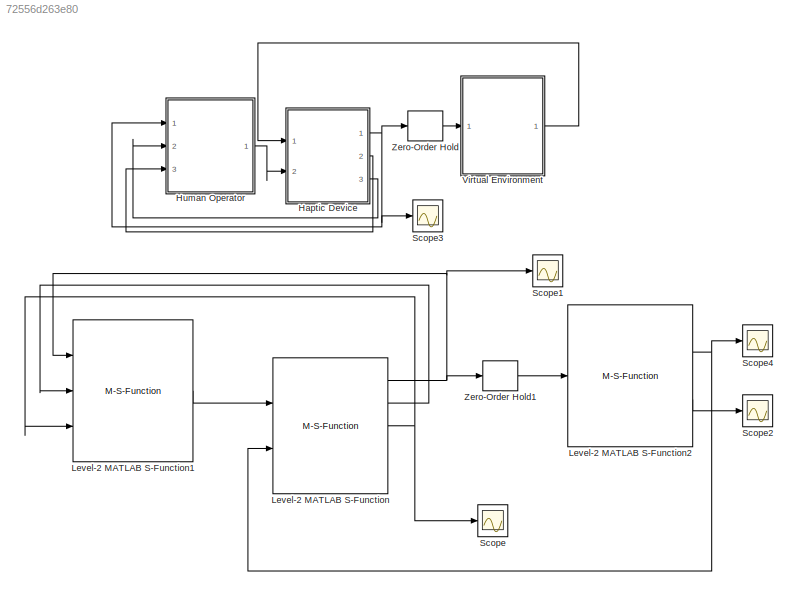
MODEL slx_72556d263e80
KIND model
CONFIG AbsTol = auto
CONFIG FixedStep = auto
CONFIG MaxStep = auto
CONFIG MinStep = auto
CONFIG RelTol = 1e-3
CONFIG SampleTimeConstraint = Unconstrained
CONFIG Solver = VariableStepAuto
CONFIG SolverMode = Auto
CONFIG SolverName = VariableStepAuto
CONFIG StartTime = 0.0
CONFIG StopTime = 5
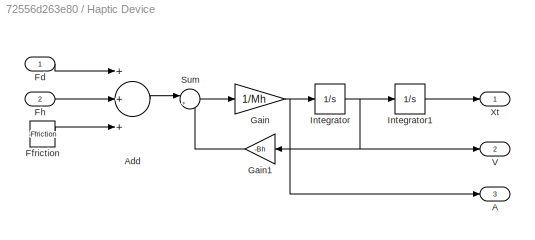
BLOCK [SubSystem] Haptic Device
  Ports = [2, 3]
  RequestExecContextInheritance = off
  Variant = off
BLOCK [Outport] Haptic Device/A
  IconDisplay = Port number
  Port = 3
BLOCK [Sum] Haptic Device/Add
  InputSameDT = off
  Inputs = +++
  OutDataTypeStr = Inherit: Inherit via internal rule
  Ports = [3, 1]
  SaturateOnIntegerOverflow = off
BLOCK [Inport] Haptic Device/Fd
  IconDisplay = Port number
BLOCK [Constant] Haptic Device/Ffriction
  Value = -Ffriction
BLOCK [Inport] Haptic Device/Fh
  IconDisplay = Port number
  Port = 2
BLOCK [Gain] Haptic Device/Gain
  Gain = 1/Mh
  OutDataTypeStr = Inherit: Inherit via internal rule
  ParamDataTypeStr = Inherit: Inherit via internal rule
  SaturateOnIntegerOverflow = off
BLOCK [Gain] Haptic Device/Gain1
  Gain = -Bh
  OutDataTypeStr = Inherit: Inherit via internal rule
  ParamDataTypeStr = Inherit: Inherit via internal rule
  SaturateOnIntegerOverflow = off
BLOCK [Integrator] Haptic Device/Integrator
  InitialCondition = V0
  Ports = [1, 1]
BLOCK [Integrator] Haptic Device/Integrator1
  InitialCondition = X0
  Ports = [1, 1]
BLOCK [Sum] Haptic Device/Sum
  IconShape = round
  InputSameDT = off
  Inputs = |++
  OutDataTypeStr = Inherit: Inherit via internal rule
  Ports = [2, 1]
  SaturateOnIntegerOverflow = off
BLOCK [Outport] Haptic Device/V
  IconDisplay = Port number
  Port = 2
BLOCK [Outport] Haptic Device/Xt
  IconDisplay = Port number
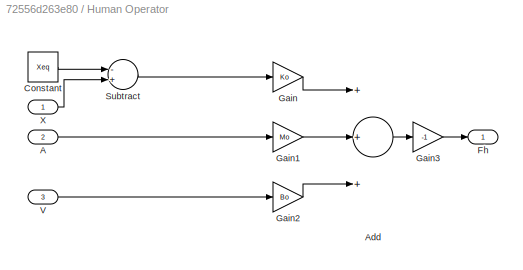
BLOCK [SubSystem] Human Operator
  Ports = [3, 1]
  RequestExecContextInheritance = off
  Variant = off
BLOCK [Inport] Human Operator/A
  IconDisplay = Port number
  Port = 2
BLOCK [Sum] Human Operator/Add
  InputSameDT = off
  Inputs = +++
  OutDataTypeStr = Inherit: Inherit via internal rule
  Ports = [3, 1]
  SaturateOnIntegerOverflow = off
BLOCK [Constant] Human Operator/Constant
  Value = Xeq
BLOCK [Outport] Human Operator/Fh
  IconDisplay = Port number
BLOCK [Gain] Human Operator/Gain
  Gain = Ko
  OutDataTypeStr = Inherit: Inherit via internal rule
  ParamDataTypeStr = Inherit: Inherit via internal rule
  SaturateOnIntegerOverflow = off
BLOCK [Gain] Human Operator/Gain1
  Gain = Mo
  OutDataTypeStr = Inherit: Inherit via internal rule
  ParamDataTypeStr = Inherit: Inherit via internal rule
  SaturateOnIntegerOverflow = off
BLOCK [Gain] Human Operator/Gain2
  Gain = Bo
  OutDataTypeStr = Inherit: Inherit via internal rule
  ParamDataTypeStr = Inherit: Inherit via internal rule
  SaturateOnIntegerOverflow = off
BLOCK [Gain] Human Operator/Gain3
  Gain = -1
  OutDataTypeStr = Inherit: Inherit via internal rule
  ParamDataTypeStr = Inherit: Inherit via internal rule
  SaturateOnIntegerOverflow = off
BLOCK [Sum] Human Operator/Subtract
  InputSameDT = off
  Inputs = -+
  OutDataTypeStr = Inherit: Inherit via internal rule
  Ports = [2, 1]
  SaturateOnIntegerOverflow = off
BLOCK [Inport] Human Operator/V
  IconDisplay = Port number
  Port = 3
BLOCK [Inport] Human Operator/X
  IconDisplay = Port number
BLOCK [M-S-Function] Level-2 MATLAB S-Function
  FunctionName = HapticDevice
  Parameters = Ffriction,Bh,Mh,tinterval,X0,V0
  Ports = [2, 5]
BLOCK [M-S-Function] Level-2 MATLAB S-Function1
  FunctionName = HumanOperator
  Parameters = Mo,Bo,Ko,Xeq,X0,V0,A0,tinterval
  Ports = [3, 1]
BLOCK [M-S-Function] Level-2 MATLAB S-Function2
  FunctionName = VirtualEnvironment
  Parameters = KWall,BWall,nWall,XWall,tsampling
  Ports = [1, 2]
BLOCK [Scope] Scope
  Ports = [1]
  ScopeSpecificationString = Simulink.scopes.TimeScopeBlockCfg('CurrentConfiguration', extmgr.ConfigurationSet(extmgr.Configuration('Core','General UI',true),extmgr.Configuration('Core','Source UI',true),extmgr.Configuration('Sources','WiredSimulink',true),extmgr.Configuration('Visuals','Time Domain',true,'SerializedDisplays',{struct('MinYLimReal','-0.73397','MaxYLimReal','3.25114','YLabelReal','','MinYLimMag','0.00000','MaxY...<+1347ch>
BLOCK [Scope] Scope1
  Ports = [1]
  ScopeSpecificationString = Simulink.scopes.TimeScopeBlockCfg('CurrentConfiguration', extmgr.ConfigurationSet(extmgr.Configuration('Core','General UI',true),extmgr.Configuration('Core','Source UI',true),extmgr.Configuration('Sources','WiredSimulink',true,'DataLoggingVariableName','ScopeData1'),extmgr.Configuration('Visuals','Time Domain',true,'SerializedDisplays',{struct('MinYLimReal','-0.00519','MaxYLimReal','0.04674','YLab...<+1486ch>
BLOCK [Scope] Scope2
  Ports = [1]
  ScopeSpecificationString = Simulink.scopes.TimeScopeBlockCfg('CurrentConfiguration', extmgr.ConfigurationSet(extmgr.Configuration('Core','General UI',true),extmgr.Configuration('Core','Source UI',true),extmgr.Configuration('Sources','WiredSimulink',true,'DataLoggingVariableName','ScopeData1'),extmgr.Configuration('Visuals','Time Domain',true,'SerializedDisplays',{struct('MinYLimReal','-0.00163','MaxYLimReal','0.01464','YLab...<+1458ch>
BLOCK [Scope] Scope3
  Ports = [1]
  ScopeSpecificationString = Simulink.scopes.TimeScopeBlockCfg('CurrentConfiguration', extmgr.ConfigurationSet(extmgr.Configuration('Core','General UI',true),extmgr.Configuration('Core','Source UI',true),extmgr.Configuration('Sources','WiredSimulink',true,'DataLoggingVariableName','ScopeData2'),extmgr.Configuration('Visuals','Time Domain',true,'SerializedDisplays',{struct('MinYLimReal','-0.00519','MaxYLimReal','0.04675','YLab...<+1474ch>
BLOCK [Scope] Scope4
  Ports = [1]
  ScopeSpecificationString = Simulink.scopes.TimeScopeBlockCfg('CurrentConfiguration', extmgr.ConfigurationSet(extmgr.Configuration('Core','General UI',true),extmgr.Configuration('Core','Source UI',true),extmgr.Configuration('Sources','WiredSimulink',true,'DataLoggingVariableName','ScopeData3'),extmgr.Configuration('Visuals','Time Domain',true,'SerializedDisplays',{struct('MinYLimReal','-1.00000','MaxYLimReal','1.00000','YLab...<+1412ch>
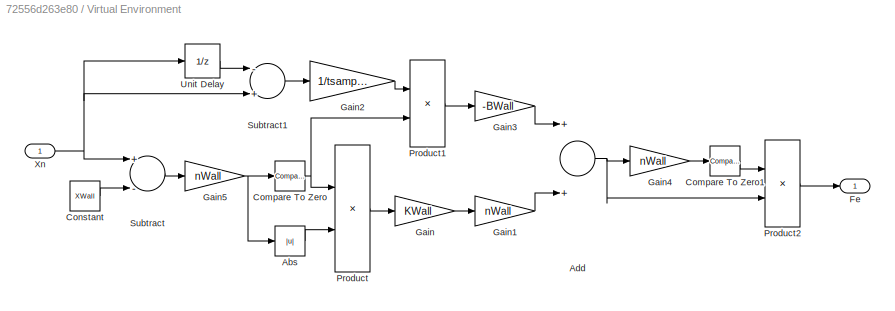
BLOCK [SubSystem] Virtual Environment
  Ports = [1, 1]
  RequestExecContextInheritance = off
  Variant = off
BLOCK [Abs] Virtual Environment/Abs
  SaturateOnIntegerOverflow = off
BLOCK [Sum] Virtual Environment/Add
  InputSameDT = off
  OutDataTypeStr = Inherit: Inherit via internal rule
  Ports = [2, 1]
  SaturateOnIntegerOverflow = off
BLOCK [Reference] Virtual Environment/Compare To Zero  REF=simulink/Logic and Bit
Operations/Compare
To Zero
  Ports = [1, 1]
  SourceBlock = simulink/Logic and Bit\nOperations/Compare\nTo Zero
  SourceType = Compare To Zero
BLOCK [Reference] Virtual Environment/Compare To Zero1  REF=simulink/Logic and Bit
Operations/Compare
To Zero
  Ports = [1, 1]
  SourceBlock = simulink/Logic and Bit\nOperations/Compare\nTo Zero
  SourceType = Compare To Zero
BLOCK [Constant] Virtual Environment/Constant
  Value = XWall
BLOCK [Outport] Virtual Environment/Fe
  IconDisplay = Port number
BLOCK [Gain] Virtual Environment/Gain
  Gain = KWall
  OutDataTypeStr = Inherit: Inherit via internal rule
  ParamDataTypeStr = Inherit: Inherit via internal rule
  SaturateOnIntegerOverflow = off
BLOCK [Gain] Virtual Environment/Gain1
  Gain = nWall
  OutDataTypeStr = Inherit: Inherit via internal rule
  ParamDataTypeStr = Inherit: Inherit via internal rule
  SaturateOnIntegerOverflow = off
BLOCK [Gain] Virtual Environment/Gain2
  Gain = 1/tsampling
  OutDataTypeStr = Inherit: Inherit via internal rule
  ParamDataTypeStr = Inherit: Inherit via internal rule
  SaturateOnIntegerOverflow = off
BLOCK [Gain] Virtual Environment/Gain3
  Gain = -BWall
  OutDataTypeStr = Inherit: Inherit via internal rule
  ParamDataTypeStr = Inherit: Inherit via internal rule
  SaturateOnIntegerOverflow = off
BLOCK [Gain] Virtual Environment/Gain4
  Gain = nWall
  OutDataTypeStr = Inherit: Inherit via internal rule
  ParamDataTypeStr = Inherit: Inherit via internal rule
  SaturateOnIntegerOverflow = off
BLOCK [Gain] Virtual Environment/Gain5
  Gain = nWall
  OutDataTypeStr = Inherit: Inherit via internal rule
  ParamDataTypeStr = Inherit: Inherit via internal rule
  SaturateOnIntegerOverflow = off
BLOCK [Product] Virtual Environment/Product
  InputSameDT = off
  OutDataTypeStr = Inherit: Inherit via internal rule
  Ports = [2, 1]
  RndMeth = Floor
  SaturateOnIntegerOverflow = off
BLOCK [Product] Virtual Environment/Product1
  InputSameDT = off
  OutDataTypeStr = Inherit: Inherit via internal rule
  Ports = [2, 1]
  RndMeth = Floor
  SaturateOnIntegerOverflow = off
BLOCK [Product] Virtual Environment/Product2
  InputSameDT = off
  OutDataTypeStr = Inherit: Inherit via internal rule
  Ports = [2, 1]
  RndMeth = Floor
  SaturateOnIntegerOverflow = off
BLOCK [Sum] Virtual Environment/Subtract
  InputSameDT = off
  Inputs = +-
  OutDataTypeStr = Inherit: Inherit via internal rule
  Ports = [2, 1]
  SaturateOnIntegerOverflow = off
BLOCK [Sum] Virtual Environment/Subtract1
  InputSameDT = off
  Inputs = -+
  OutDataTypeStr = Inherit: Inherit via internal rule
  Ports = [2, 1]
  SaturateOnIntegerOverflow = off
BLOCK [UnitDelay] Virtual Environment/Unit Delay
  InitialCondition = X0
  InputProcessing = Elements as channels (sample based)
  SampleTime = tsampling
BLOCK [Inport] Virtual Environment/Xn
  IconDisplay = Port number
BLOCK [ZeroOrderHold] Zero-Order Hold
  SampleTime = tsampling
BLOCK [ZeroOrderHold] Zero-Order Hold1
  SampleTime = tsampling
LINE Haptic Device/Add:1 -> Haptic Device/Sum:1
LINE Haptic Device/Fd:1 -> Haptic Device/Add:1
LINE Haptic Device/Ffriction:1 -> Haptic Device/Add:3
LINE Haptic Device/Fh:1 -> Haptic Device/Add:2
LINE Haptic Device/Gain1:1 -> Haptic Device/Sum:2
NET Haptic Device/Gain:1 -> Haptic Device/A:1, Haptic Device/Integrator:1
LINE Haptic Device/Integrator1:1 -> Haptic Device/Xt:1
NET Haptic Device/Integrator:1 -> Haptic Device/Gain1:1, Haptic Device/Integrator1:1, Haptic Device/V:1
LINE Haptic Device/Sum:1 -> Haptic Device/Gain:1
NET Haptic Device:1 -> Human Operator:1, Scope3:1, Zero-Order Hold:1
LINE Haptic Device:2 -> Human Operator:3
LINE Haptic Device:3 -> Human Operator:2
LINE Human Operator/A:1 -> Human Operator/Gain1:1
LINE Human Operator/Add:1 -> Human Operator/Gain3:1
LINE Human Operator/Constant:1 -> Human Operator/Subtract:1
LINE Human Operator/Gain1:1 -> Human Operator/Add:2
LINE Human Operator/Gain2:1 -> Human Operator/Add:3
LINE Human Operator/Gain3:1 -> Human Operator/Fh:1
LINE Human Operator/Gain:1 -> Human Operator/Add:1
LINE Human Operator/Subtract:1 -> Human Operator/Gain:1
LINE Human Operator/V:1 -> Human Operator/Gain2:1
LINE Human Operator/X:1 -> Human Operator/Subtract:2
LINE Human Operator:1 -> Haptic Device:2
LINE Level-2 MATLAB S-Function1:1 -> Level-2 MATLAB S-Function:1
NET Level-2 MATLAB S-Function2:1 -> Level-2 MATLAB S-Function:2, Scope4:1
LINE Level-2 MATLAB S-Function2:2 -> Scope2:1
NET Level-2 MATLAB S-Function:1 -> Level-2 MATLAB S-Function1:1, Scope1:1, Zero-Order Hold1:1
LINE Level-2 MATLAB S-Function:2 -> Level-2 MATLAB S-Function1:2
NET Level-2 MATLAB S-Function:3 -> Level-2 MATLAB S-Function1:3, Scope:1
LINE Virtual Environment/Abs:1 -> Virtual Environment/Product:2
NET Virtual Environment/Add:1 -> Virtual Environment/Gain4:1, Virtual Environment/Product2:2
LINE Virtual Environment/Compare To Zero1:1 -> Virtual Environment/Product2:1
NET Virtual Environment/Compare To Zero:1 -> Virtual Environment/Product1:2, Virtual Environment/Product:1
LINE Virtual Environment/Constant:1 -> Virtual Environment/Subtract:2
LINE Virtual Environment/Gain1:1 -> Virtual Environment/Add:2
LINE Virtual Environment/Gain2:1 -> Virtual Environment/Product1:1
LINE Virtual Environment/Gain3:1 -> Virtual Environment/Add:1
LINE Virtual Environment/Gain4:1 -> Virtual Environment/Compare To Zero1:1
NET Virtual Environment/Gain5:1 -> Virtual Environment/Abs:1, Virtual Environment/Compare To Zero:1
LINE Virtual Environment/Gain:1 -> Virtual Environment/Gain1:1
LINE Virtual Environment/Product1:1 -> Virtual Environment/Gain3:1
LINE Virtual Environment/Product2:1 -> Virtual Environment/Fe:1
LINE Virtual Environment/Product:1 -> Virtual Environment/Gain:1
LINE Virtual Environment/Subtract1:1 -> Virtual Environment/Gain2:1
LINE Virtual Environment/Subtract:1 -> Virtual Environment/Gain5:1
LINE Virtual Environment/Unit Delay:1 -> Virtual Environment/Subtract1:1
NET Virtual Environment/Xn:1 -> Virtual Environment/Subtract1:2, Virtual Environment/Subtract:1, Virtual Environment/Unit Delay:1
LINE Virtual Environment:1 -> Haptic Device:1
LINE Zero-Order Hold1:1 -> Level-2 MATLAB S-Function2:1
LINE Zero-Order Hold:1 -> Virtual Environment:1
note: NET lines group one-source signal fan-out (src -> all destinations, sorted); 1:1 wires keep LINE
